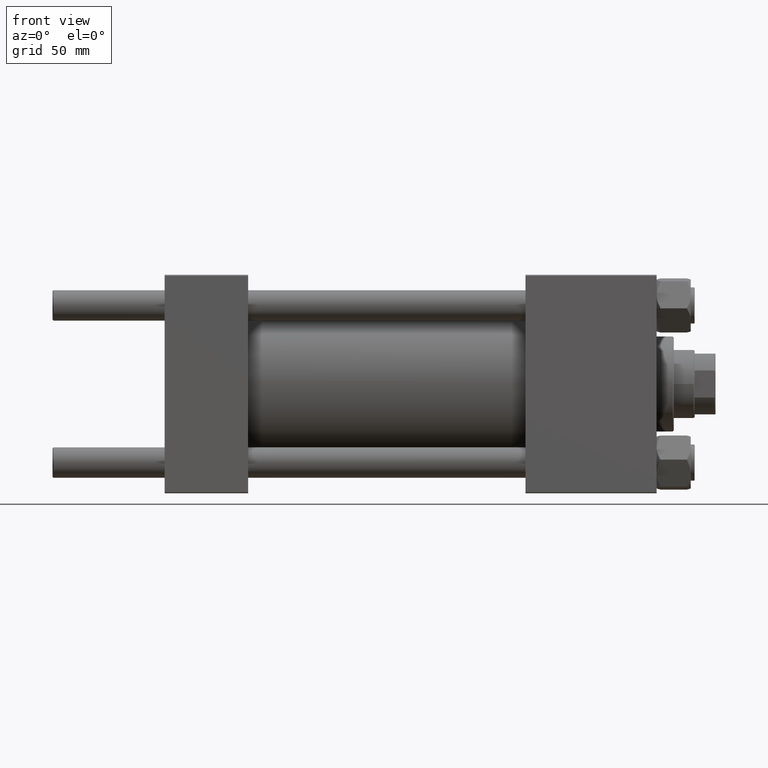
[diagram: clean part render]
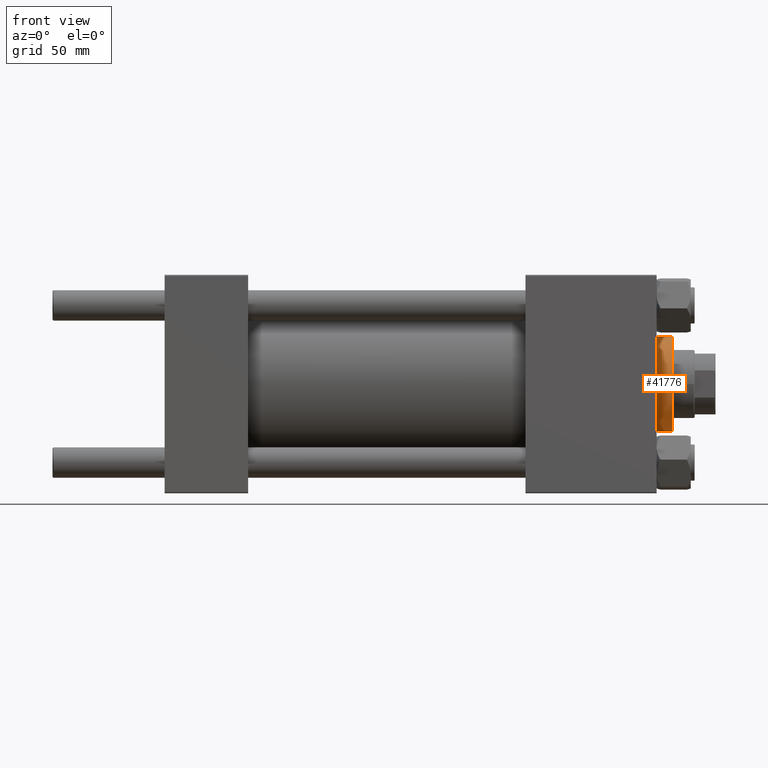
[diagram: same view with one face highlighted and labeled with its STEP entity id]
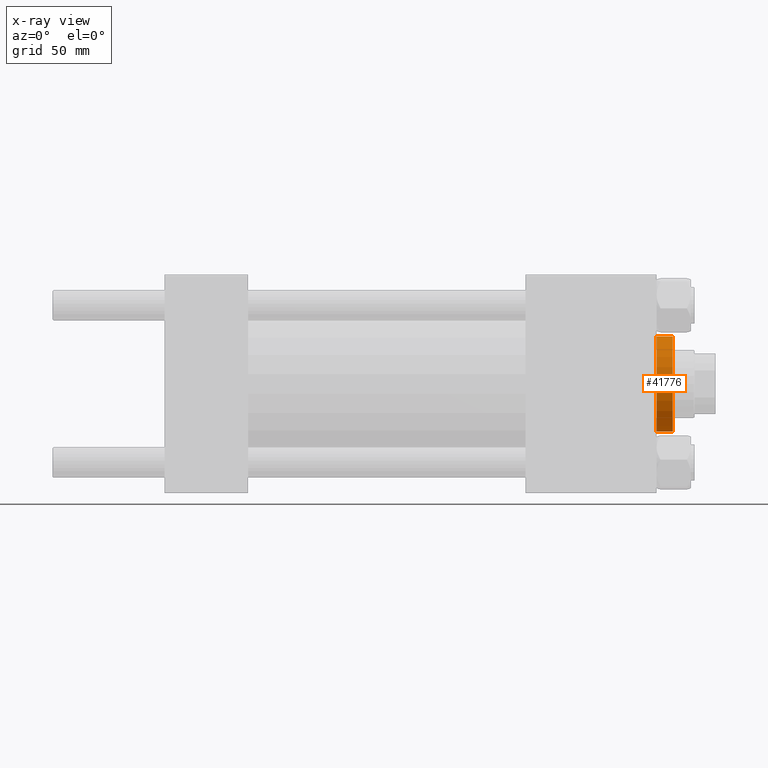
[diagram: x-ray of the same camera — body ghosted, the highlighted face saturated]
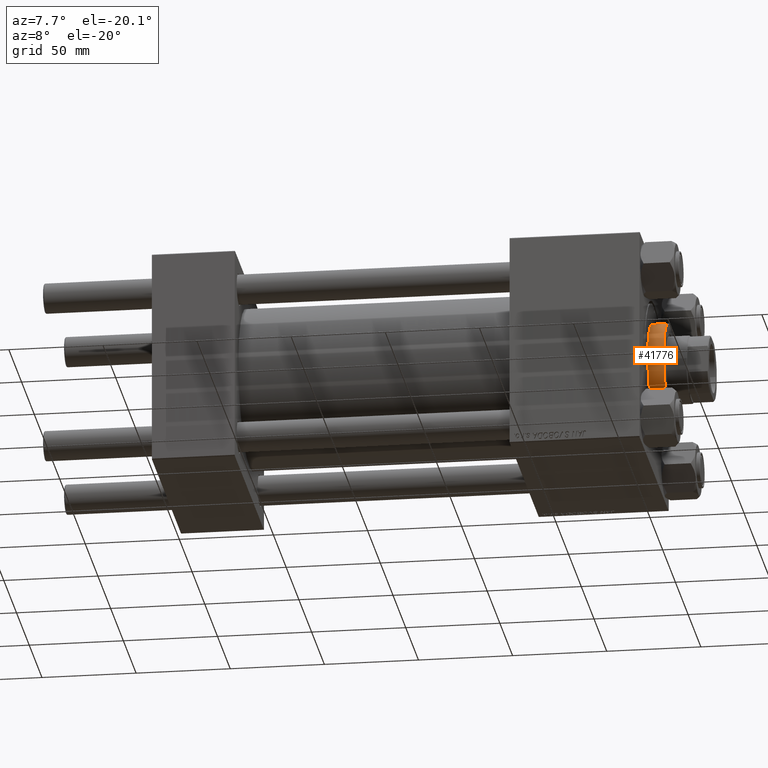
[diagram: same view with one face highlighted and labeled with its STEP entity id]
A machine part, front view. The second image highlights one B-rep face of the part: STEP entity #41776.
The next image is the same camera in x-ray: the body ghosted, the highlighted face saturated — about 0% of this face is hidden behind the body in this view.
A second angle (auxiliary view) of the same face is appended — the face is thin or edge-on in the first view.
In plain terms, the highlighted cylindrical surface (partial cylindrical patch) has radius 25 mm, axis along (-1, -0, 0).
Its self-contained STEP definition (entity closure, byte-faithful):
#1397 = ORIENTED_EDGE ( 'NONE', *, *, #2986, .T. ) ;
#2227 = CIRCLE ( 'NONE', #42900, 25.00000000000000000 ) ;
#2986 = EDGE_CURVE ( 'NONE', #9728, #20578, #2227, .T. ) ;
#2990 = EDGE_CURVE ( 'NONE', #47476, #9728, #30009, .T. ) ;
#4294 = CARTESIAN_POINT ( 'NONE',  ( -25.00000000000000000, 0.000000000000000000, 28.69999999999999929 ) ) ;
#4687 = CARTESIAN_POINT ( 'NONE',  ( 0.000000000000000000, 0.000000000000000000, 37.69999999999999574 ) ) ;
#4734 = CARTESIAN_POINT ( 'NONE',  ( 25.00000000000000000, 3.061616997868383043E-15, 37.69999999999999574 ) ) ;
#4856 = ORIENTED_EDGE ( 'NONE', *, *, #2990, .T. ) ;
#5956 = EDGE_CURVE ( 'NONE', #9099, #20578, #50326, .T. ) ;
#8391 = EDGE_CURVE ( 'NONE', #9099, #47476, #44697, .T. ) ;
#9099 = VERTEX_POINT ( 'NONE', #33994 ) ;
#9728 = VERTEX_POINT ( 'NONE', #4294 ) ;
#11947 = AXIS2_PLACEMENT_3D ( 'NONE', #4687, #15897, #44378 ) ;
#13469 = ORIENTED_EDGE ( 'NONE', *, *, #5956, .F. ) ;
#14736 = DIRECTION ( 'NONE',  ( 1.000000000000000000, 0.000000000000000000, 0.000000000000000000 ) ) ;
#15445 = DIRECTION ( 'NONE',  ( -0.000000000000000000, -0.000000000000000000, -1.000000000000000000 ) ) ;
#15897 = DIRECTION ( 'NONE',  ( -0.000000000000000000, -0.000000000000000000, -1.000000000000000000 ) ) ;
#17605 = CARTESIAN_POINT ( 'NONE',  ( 0.000000000000000000, 0.000000000000000000, 37.19999999999999574 ) ) ;
#17774 = VECTOR ( 'NONE', #15445, 1000.000000000000000 ) ;
#18186 = ORIENTED_EDGE ( 'NONE', *, *, #8391, .T. ) ;
#20578 = VERTEX_POINT ( 'NONE', #41644 ) ;
#20953 = VECTOR ( 'NONE', #41713, 1000.000000000000000 ) ;
#22116 = CARTESIAN_POINT ( 'NONE',  ( 0.000000000000000000, 0.000000000000000000, 28.69999999999999929 ) ) ;
#26184 = CARTESIAN_POINT ( 'NONE',  ( -25.00000000000000000, 0.000000000000000000, 37.69999999999999574 ) ) ;
#27864 = FACE_OUTER_BOUND ( 'NONE', #44857, .T. ) ;
#30009 = LINE ( 'NONE', #26184, #20953 ) ;
#33159 = DIRECTION ( 'NONE',  ( 0.000000000000000000, 0.000000000000000000, -1.000000000000000000 ) ) ;
#33994 = CARTESIAN_POINT ( 'NONE',  ( 25.00000000000000000, 3.061616997868383043E-15, 37.19999999999999574 ) ) ;
#34155 = AXIS2_PLACEMENT_3D ( 'NONE', #17605, #33159, #48914 ) ;
#39586 = CYLINDRICAL_SURFACE ( 'NONE', #11947, 25.00000000000000000 ) ;
#40721 = DIRECTION ( 'NONE',  ( 0.000000000000000000, 0.000000000000000000, 1.000000000000000000 ) ) ;
#41644 = CARTESIAN_POINT ( 'NONE',  ( 25.00000000000000000, 3.061616997868383043E-15, 28.69999999999999929 ) ) ;
#41713 = DIRECTION ( 'NONE',  ( -0.000000000000000000, -0.000000000000000000, -1.000000000000000000 ) ) ;
#41776 = ADVANCED_FACE ( 'NONE', ( #27864 ), #39586, .T. ) ;
#42900 = AXIS2_PLACEMENT_3D ( 'NONE', #22116, #40721, #14736 ) ;
#44378 = DIRECTION ( 'NONE',  ( -1.000000000000000000, 0.000000000000000000, 0.000000000000000000 ) ) ;
#44697 = CIRCLE ( 'NONE', #34155, 25.00000000000000000 ) ;
#44857 = EDGE_LOOP ( 'NONE', ( #13469, #18186, #4856, #1397 ) ) ;
#47476 = VERTEX_POINT ( 'NONE', #49251 ) ;
#48914 = DIRECTION ( 'NONE',  ( 1.000000000000000000, 0.000000000000000000, 0.000000000000000000 ) ) ;
#49251 = CARTESIAN_POINT ( 'NONE',  ( -25.00000000000000000, 0.000000000000000000, 37.19999999999999574 ) ) ;
#50326 = LINE ( 'NONE', #4734, #17774 ) ;